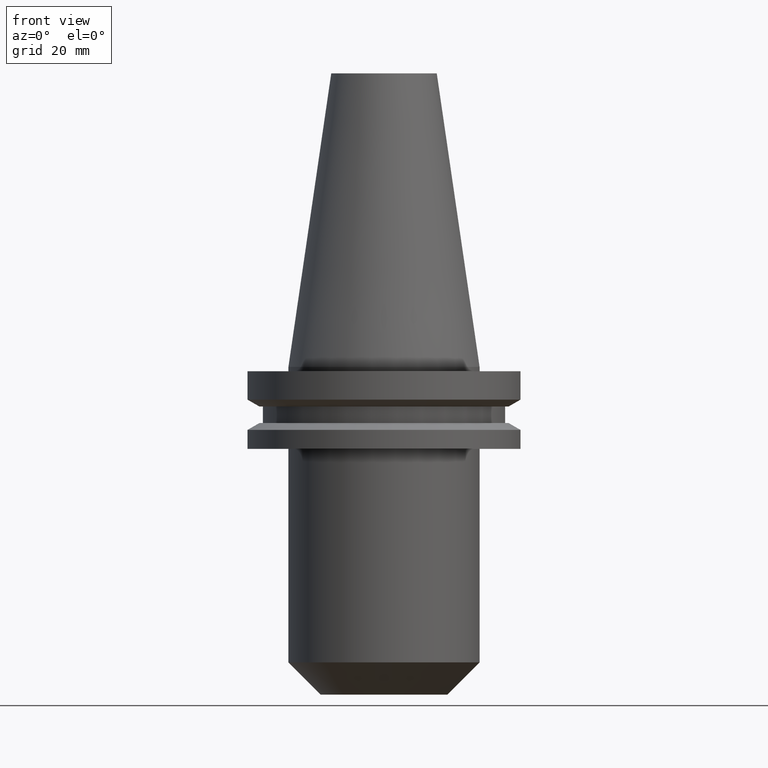
[diagram: clean part render]
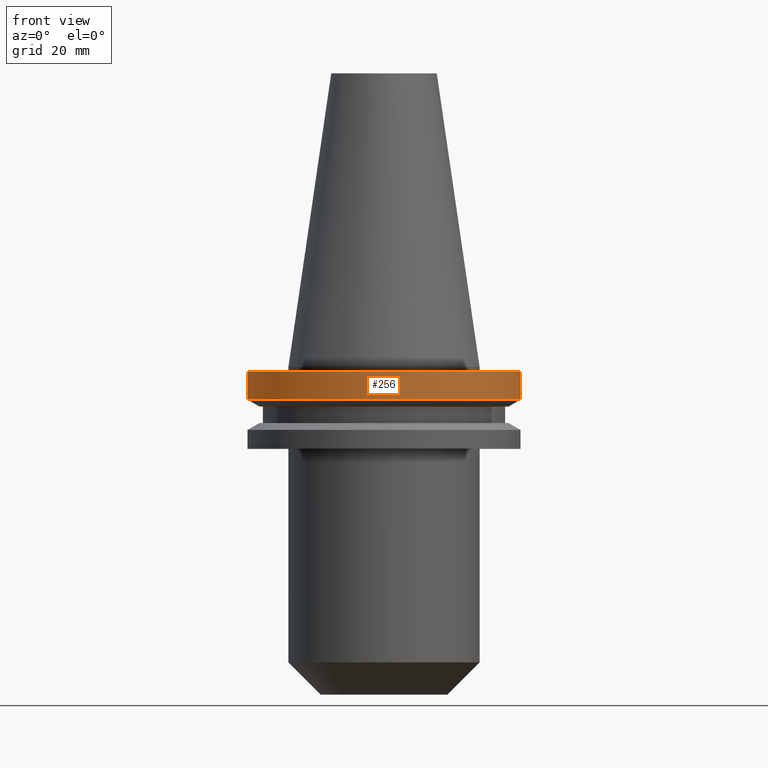
[diagram: same view with one face highlighted and labeled with its STEP entity id]
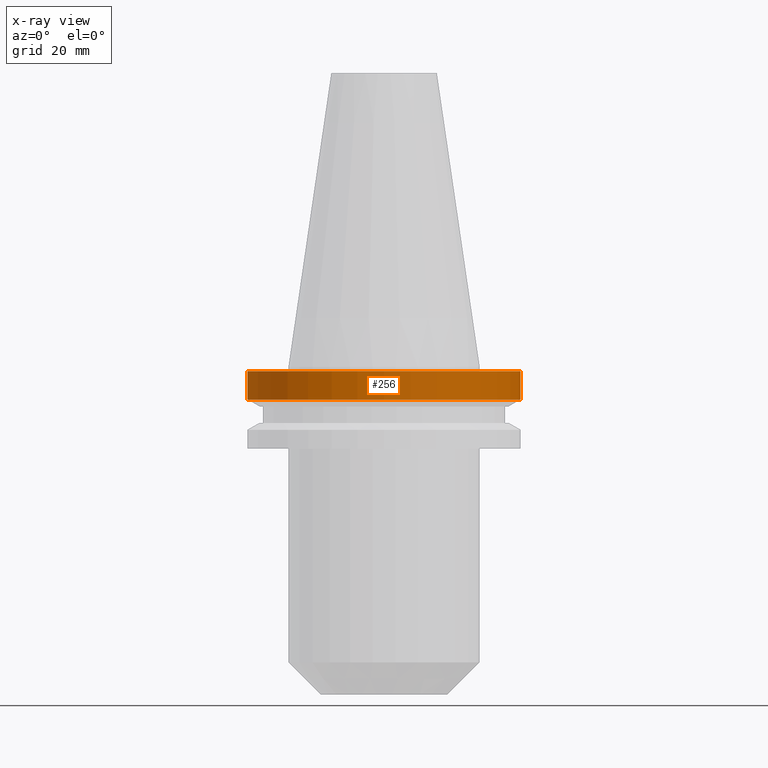
[diagram: x-ray of the same camera — body ghosted, the highlighted face saturated]
A machine part, front view. The second image highlights one B-rep face of the part: STEP entity #256.
The next image is the same camera in x-ray: the body ghosted, the highlighted face saturated — about 0% of this face is hidden behind the body in this view.
In plain terms, the highlighted cylindrical surface (partial cylindrical patch) has radius 31.75 mm, axis along (-0, -0, 1).
Its self-contained STEP definition (entity closure, byte-faithful):
#1 = CARTESIAN_POINT ( 'NONE',  ( -31.75000000000000000, 3.888253587292846476E-15, -1.000000000000000888 ) ) ;
#27 = LINE ( 'NONE', #39, #32 ) ;
#32 = VECTOR ( 'NONE', #692, 1000.000000000000000 ) ;
#39 = CARTESIAN_POINT ( 'NONE',  ( -31.75000000000000000, 3.888253587292846476E-15, 68.25000000000000000 ) ) ;
#57 = AXIS2_PLACEMENT_3D ( 'NONE', #515, #455, #155 ) ;
#72 = CIRCLE ( 'NONE', #57, 31.75000000000000000 ) ;
#90 = VERTEX_POINT ( 'NONE', #570 ) ;
#155 = DIRECTION ( 'NONE',  ( 1.000000000000000000, 0.000000000000000000, 0.000000000000000000 ) ) ;
#165 = ORIENTED_EDGE ( 'NONE', *, *, #660, .F. ) ;
#186 = CARTESIAN_POINT ( 'NONE',  ( -31.75000000000000000, 3.888253587292846476E-15, -7.605276606597335842 ) ) ;
#205 = CIRCLE ( 'NONE', #429, 31.75000000000000000 ) ;
#215 = VECTOR ( 'NONE', #496, 1000.000000000000000 ) ;
#221 = VERTEX_POINT ( 'NONE', #1 ) ;
#248 = CYLINDRICAL_SURFACE ( 'NONE', #706, 31.75000000000000000 ) ;
#256 = ADVANCED_FACE ( 'NONE', ( #534 ), #248, .T. ) ;
#267 = VERTEX_POINT ( 'NONE', #186 ) ;
#274 = EDGE_LOOP ( 'NONE', ( #535, #464, #426, #165 ) ) ;
#416 = CARTESIAN_POINT ( 'NONE',  ( 0.000000000000000000, 0.000000000000000000, 68.25000000000000000 ) ) ;
#426 = ORIENTED_EDGE ( 'NONE', *, *, #463, .T. ) ;
#429 = AXIS2_PLACEMENT_3D ( 'NONE', #556, #499, #433 ) ;
#433 = DIRECTION ( 'NONE',  ( 1.000000000000000000, 0.000000000000000000, 0.000000000000000000 ) ) ;
#455 = DIRECTION ( 'NONE',  ( -0.000000000000000000, -0.000000000000000000, 1.000000000000000000 ) ) ;
#463 = EDGE_CURVE ( 'NONE', #90, #492, #725, .T. ) ;
#464 = ORIENTED_EDGE ( 'NONE', *, *, #537, .T. ) ;
#488 = DIRECTION ( 'NONE',  ( -0.000000000000000000, -0.000000000000000000, 1.000000000000000000 ) ) ;
#492 = VERTEX_POINT ( 'NONE', #559 ) ;
#496 = DIRECTION ( 'NONE',  ( -0.000000000000000000, -0.000000000000000000, 1.000000000000000000 ) ) ;
#499 = DIRECTION ( 'NONE',  ( -0.000000000000000000, -0.000000000000000000, 1.000000000000000000 ) ) ;
#515 = CARTESIAN_POINT ( 'NONE',  ( 0.000000000000000000, 0.000000000000000000, -1.000000000000000888 ) ) ;
#534 = FACE_OUTER_BOUND ( 'NONE', #274, .T. ) ;
#535 = ORIENTED_EDGE ( 'NONE', *, *, #680, .F. ) ;
#537 = EDGE_CURVE ( 'NONE', #267, #90, #205, .T. ) ;
#556 = CARTESIAN_POINT ( 'NONE',  ( 0.000000000000000000, 0.000000000000000000, -7.605276606597335842 ) ) ;
#559 = CARTESIAN_POINT ( 'NONE',  ( 31.75000000000000000, 0.000000000000000000, -1.000000000000000888 ) ) ;
#570 = CARTESIAN_POINT ( 'NONE',  ( 31.75000000000000000, 0.000000000000000000, -7.605276606597335842 ) ) ;
#612 = DIRECTION ( 'NONE',  ( 1.000000000000000000, 0.000000000000000000, 0.000000000000000000 ) ) ;
#614 = CARTESIAN_POINT ( 'NONE',  ( 31.75000000000000000, 0.000000000000000000, 68.25000000000000000 ) ) ;
#660 = EDGE_CURVE ( 'NONE', #221, #492, #72, .T. ) ;
#680 = EDGE_CURVE ( 'NONE', #267, #221, #27, .T. ) ;
#692 = DIRECTION ( 'NONE',  ( -0.000000000000000000, -0.000000000000000000, 1.000000000000000000 ) ) ;
#706 = AXIS2_PLACEMENT_3D ( 'NONE', #416, #488, #612 ) ;
#725 = LINE ( 'NONE', #614, #215 ) ;